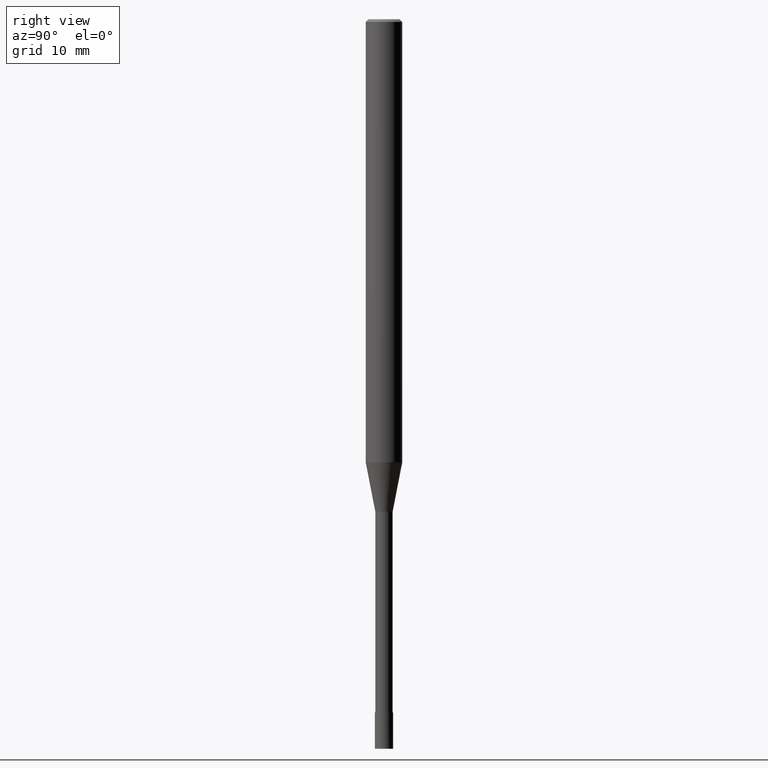
[diagram: clean part render]
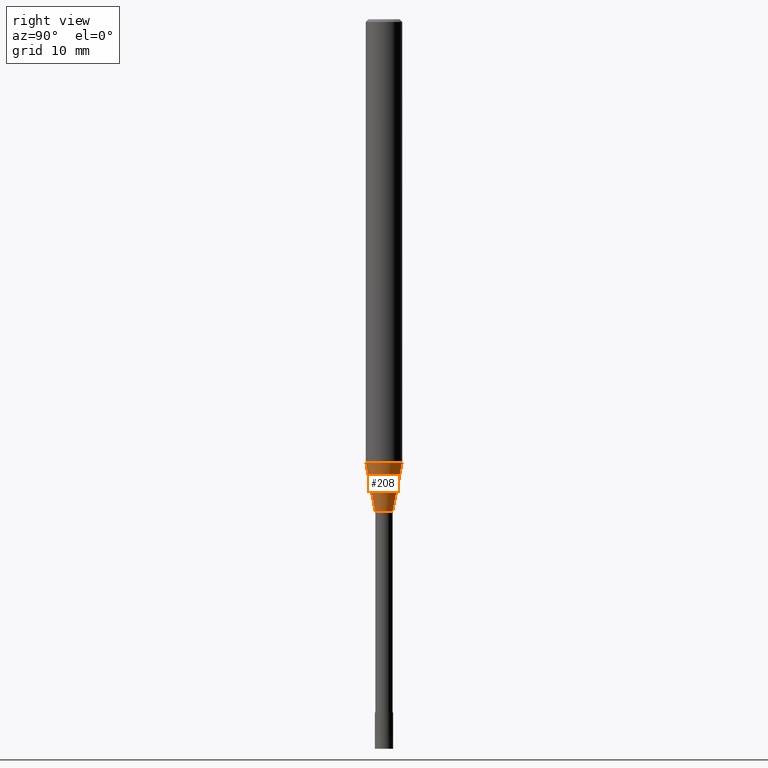
[diagram: same view with one face highlighted and labeled with its STEP entity id]
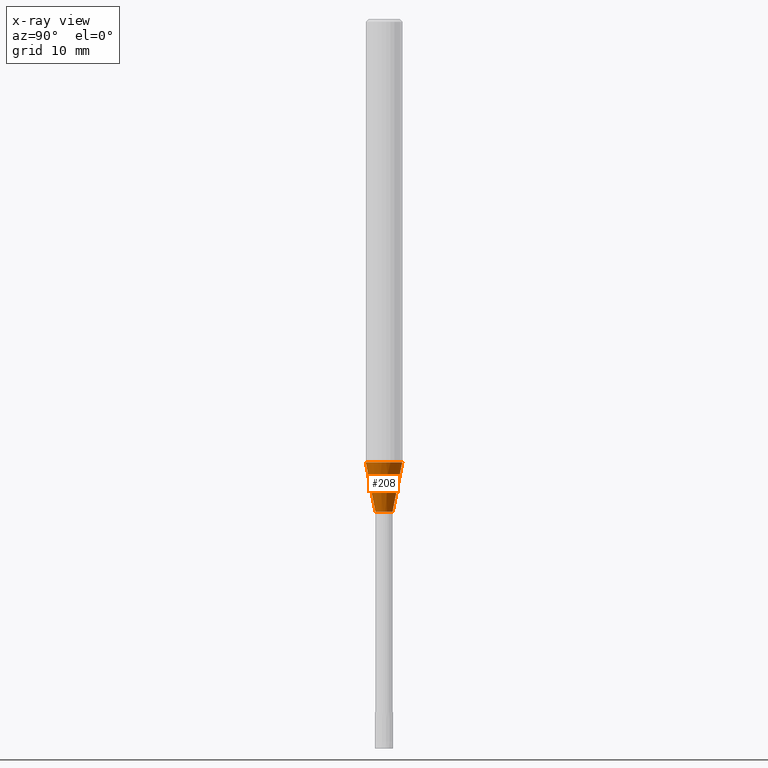
[diagram: x-ray of the same camera — body ghosted, the highlighted face saturated]
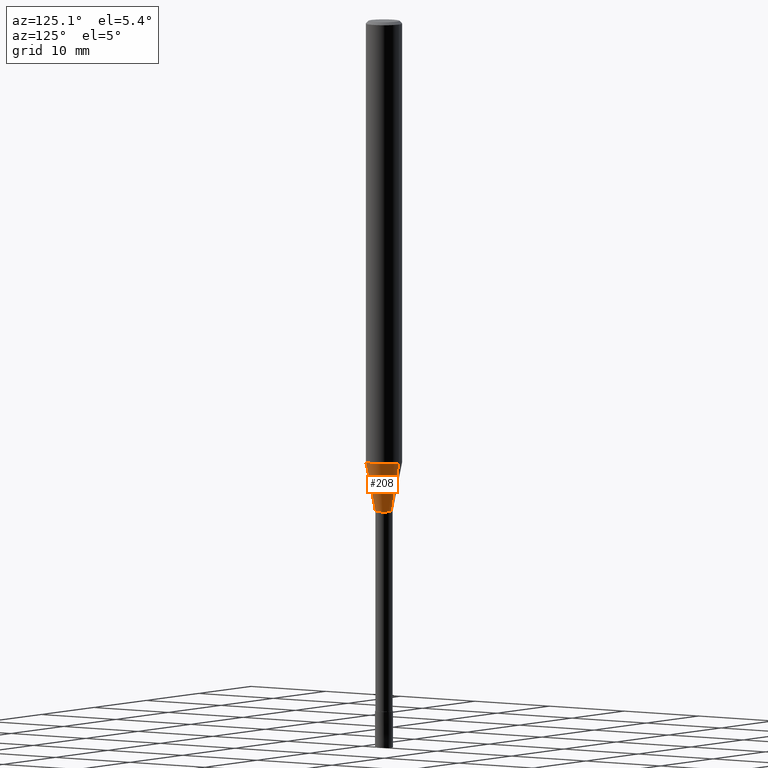
[diagram: same view with one face highlighted and labeled with its STEP entity id]
A machine part, right view. The second image highlights one B-rep face of the part: STEP entity #208.
The next image is the same camera in x-ray: the body ghosted, the highlighted face saturated — about 0% of this face is hidden behind the body in this view.
A second angle (auxiliary view) of the same face is appended — the face is thin or edge-on in the first view.
In plain terms, the highlighted conical surface has half-angle 11 deg.
Its self-contained STEP definition (entity closure, byte-faithful):
#108=VERTEX_POINT('',#247);
#118=VERTEX_POINT('',#258);
#120=EDGE_CURVE('',#158,#118,#260,.T.);
#158=VERTEX_POINT('',#305);
#160=EDGE_CURVE('',#158,#108,#307,.T.);
#196=EDGE_CURVE('',#118,#206,#348,.T.);
#202=EDGE_CURVE('',#206,#108,#354,.T.);
#206=VERTEX_POINT('',#358);
#208=ADVANCED_FACE('',(#360),#361,.T.);
#247=CARTESIAN_POINT('',(2.44915147732706E-016,-1.99995,-48.598));
#258=CARTESIAN_POINT('',(0.0,0.94995,-54.0));
#260=LINE('',#410,#411);
#305=CARTESIAN_POINT('',(0.0,1.99995,-48.598));
#307=CIRCLE('',#467,1.99995);
#348=CIRCLE('',#522,0.94995);
#354=LINE('',#530,#531);
#358=CARTESIAN_POINT('',(1.16331480581357E-016,-0.94995,-54.0));
#360=FACE_OUTER_BOUND('',#539,.T.);
#361=CONICAL_SURFACE('',#540,1.47495,0.191978649183841);
#410=CARTESIAN_POINT('',(-1.80623314157032E-016,1.47495,-51.299));
#411=VECTOR('',#568,1.0);
#467=AXIS2_PLACEMENT_3D('',#633,#634,#635);
#522=AXIS2_PLACEMENT_3D('',#698,#699,#700);
#530=CARTESIAN_POINT('',(1.80623314157031E-016,-1.47495,-51.299));
#531=VECTOR('',#704,1.0);
#539=EDGE_LOOP('',(#707,#708,#709,#710));
#540=AXIS2_PLACEMENT_3D('',#711,#712,#713);
#568=DIRECTION('',(2.33656809909205E-017,-0.190801565890859,-0.981628627564211));
#633=CARTESIAN_POINT('',(0.0,0.0,-48.598));
#634=DIRECTION('',(0.0,0.0,-1.0));
#635=DIRECTION('',(0.0,1.0,0.0));
#698=CARTESIAN_POINT('',(0.0,0.0,-54.0));
#699=DIRECTION('',(0.0,0.0,-1.0));
#700=DIRECTION('',(0.0,1.0,0.0));
#704=DIRECTION('',(2.33656809909205E-017,-0.190801565890859,0.981628627564211));
#707=ORIENTED_EDGE('',*,*,#120,.F.);
#708=ORIENTED_EDGE('',*,*,#160,.T.);
#709=ORIENTED_EDGE('',*,*,#202,.F.);
#710=ORIENTED_EDGE('',*,*,#196,.F.);
#711=CARTESIAN_POINT('',(0.0,0.0,-51.299));
#712=DIRECTION('',(-0.0,-0.0,1.0));
#713=DIRECTION('',(0.0,1.0,0.0));